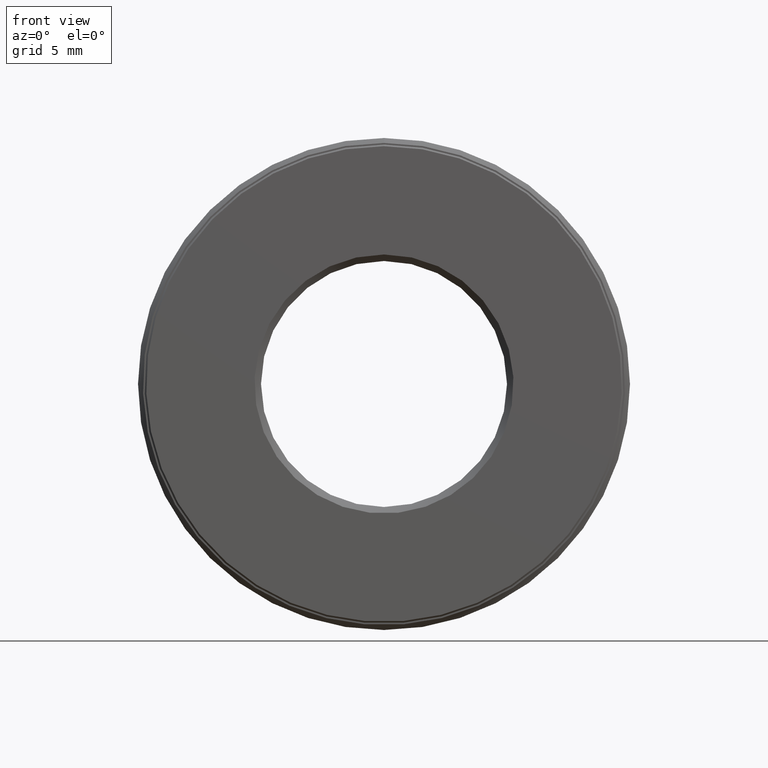
[diagram: clean part render]
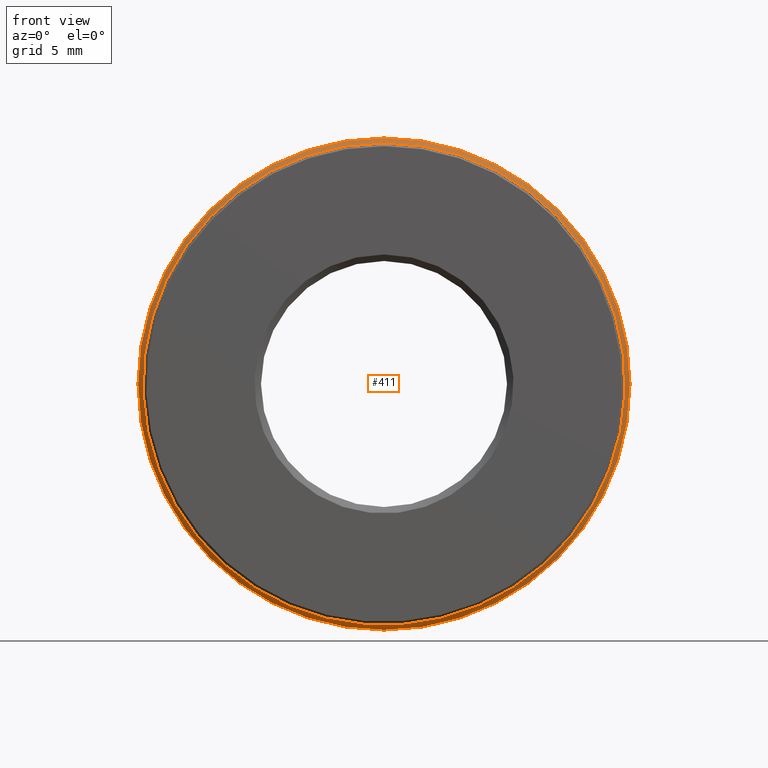
[diagram: same view with one face highlighted and labeled with its STEP entity id]
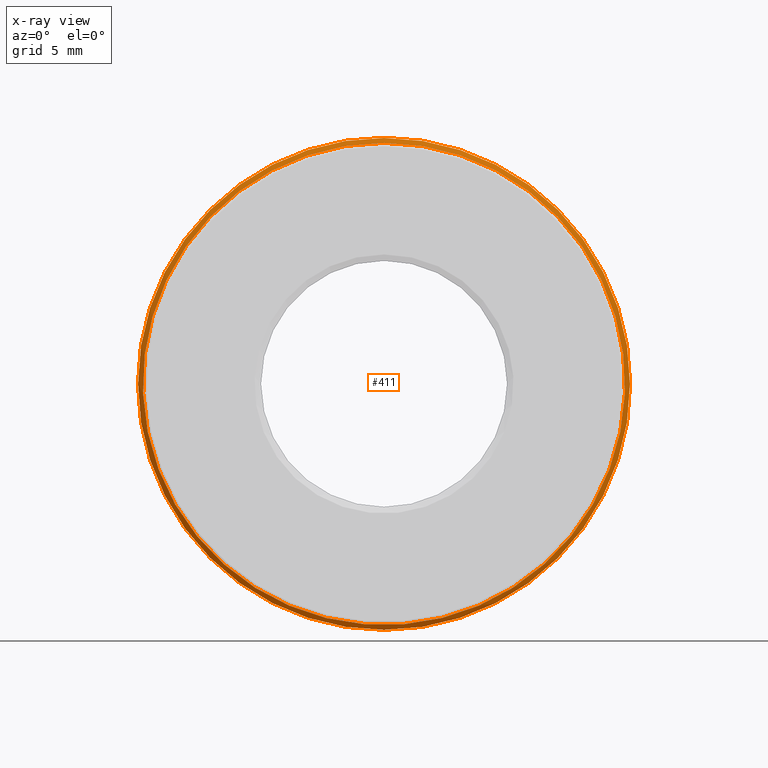
[diagram: x-ray of the same camera — body ghosted, the highlighted face saturated]
A machine part, front view. The second image highlights one B-rep face of the part: STEP entity #411.
The next image is the same camera in x-ray: the body ghosted, the highlighted face saturated — about 0% of this face is hidden behind the body in this view.
In plain terms, the highlighted conical surface has half-angle 45 deg.
Its self-contained STEP definition (entity closure, byte-faithful):
#55 = AXIS2_PLACEMENT_3D ( 'NONE', #191, #559, #318 ) ;
#56 = DIRECTION ( 'NONE',  ( -0.0000000000000000000, 1.000000000000000000, -0.0000000000000000000 ) ) ;
#59 = CARTESIAN_POINT ( 'NONE',  ( 0.0000000000000000000, 0.01499999999999997700, 0.0000000000000000000 ) ) ;
#63 = CARTESIAN_POINT ( 'NONE',  ( 0.0000000000000000000, -4.908789363615472800E-017, 0.0000000000000000000 ) ) ;
#73 = CARTESIAN_POINT ( 'NONE',  ( 0.0000000000000000000, 0.01499999999999997700, 0.7499999999999998900 ) ) ;
#113 = EDGE_LOOP ( 'NONE', ( #442 ) ) ;
#147 = CONICAL_SURFACE ( 'NONE', #293, 0.7350000000000001000, 0.7853981633974422800 ) ;
#176 = EDGE_LOOP ( 'NONE', ( #516 ) ) ;
#178 = VERTEX_POINT ( 'NONE', #73 ) ;
#191 = CARTESIAN_POINT ( 'NONE',  ( 0.0000000000000000000, -4.908789363615472800E-017, 0.0000000000000000000 ) ) ;
#224 = CIRCLE ( 'NONE', #55, 0.7350000000000001000 ) ;
#249 = CARTESIAN_POINT ( 'NONE',  ( 0.0000000000000000000, -4.908789363615472800E-017, 0.7350000000000001000 ) ) ;
#273 = EDGE_CURVE ( 'NONE', #178, #178, #589, .T. ) ;
#293 = AXIS2_PLACEMENT_3D ( 'NONE', #63, #528, #574 ) ;
#305 = EDGE_CURVE ( 'NONE', #560, #560, #224, .T. ) ;
#318 = DIRECTION ( 'NONE',  ( 0.0000000000000000000, 0.0000000000000000000, 1.000000000000000000 ) ) ;
#345 = FACE_BOUND ( 'NONE', #176, .T. ) ;
#380 = DIRECTION ( 'NONE',  ( 0.0000000000000000000, 0.0000000000000000000, 1.000000000000000000 ) ) ;
#411 = ADVANCED_FACE ( 'NONE', ( #526, #345 ), #147, .T. ) ;
#442 = ORIENTED_EDGE ( 'NONE', *, *, #273, .F. ) ;
#516 = ORIENTED_EDGE ( 'NONE', *, *, #305, .T. ) ;
#526 = FACE_OUTER_BOUND ( 'NONE', #113, .T. ) ;
#528 = DIRECTION ( 'NONE',  ( -0.0000000000000000000, 1.000000000000000000, -0.0000000000000000000 ) ) ;
#559 = DIRECTION ( 'NONE',  ( -0.0000000000000000000, 1.000000000000000000, -0.0000000000000000000 ) ) ;
#560 = VERTEX_POINT ( 'NONE', #249 ) ;
#563 = AXIS2_PLACEMENT_3D ( 'NONE', #59, #56, #380 ) ;
#574 = DIRECTION ( 'NONE',  ( 0.0000000000000000000, 0.0000000000000000000, 1.000000000000000000 ) ) ;
#589 = CIRCLE ( 'NONE', #563, 0.7499999999999998900 ) ;